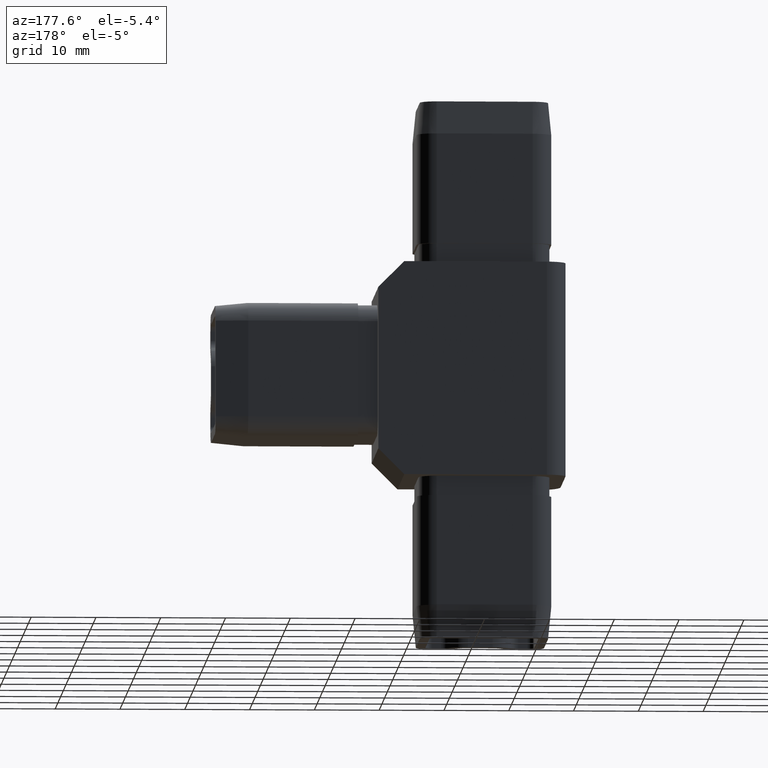
[diagram: clean part render]
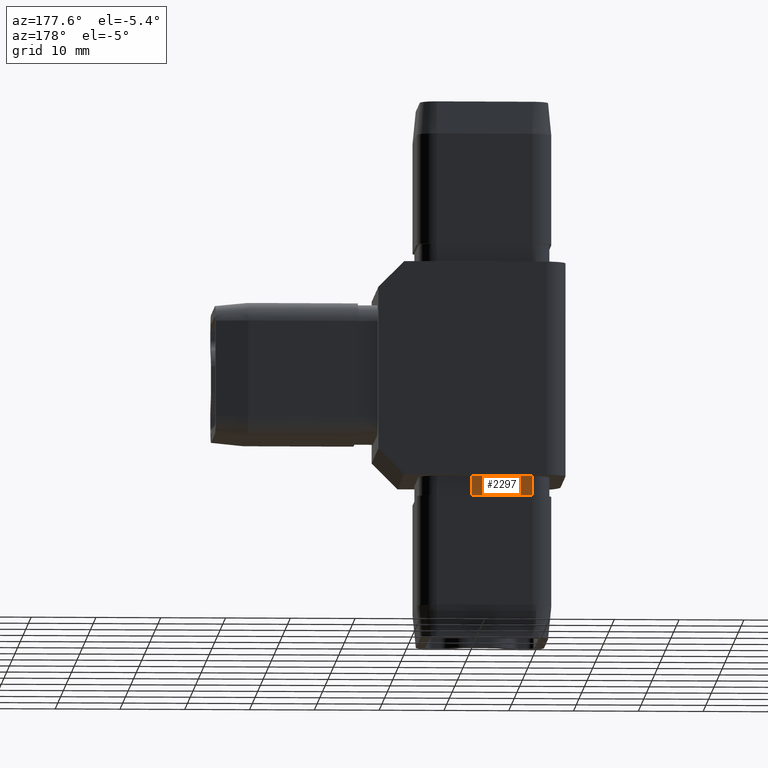
[diagram: same view with one face highlighted and labeled with its STEP entity id]
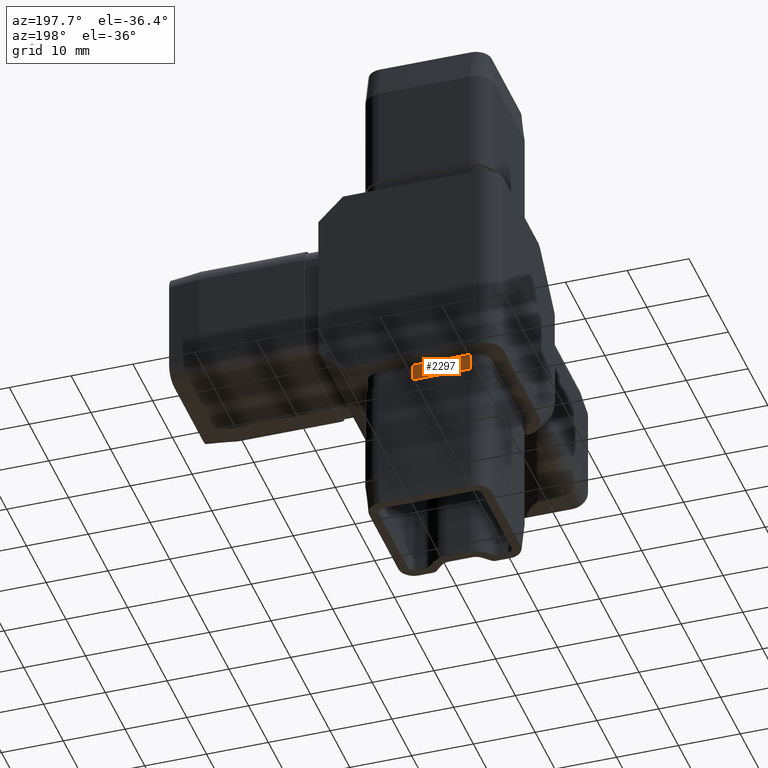
[diagram: same view with one face highlighted and labeled with its STEP entity id]
A machine part, auxiliary view. The second image highlights one B-rep face of the part: STEP entity #2297.
A second angle (auxiliary view) of the same face is appended — the face is thin or edge-on in the first view.
In plain terms, the highlighted planar face has unit normal (-0, 1, 0).
Its self-contained STEP definition (entity closure, byte-faithful):
#83 = VERTEX_POINT ( 'NONE', #4534 ) ;
#340 = CARTESIAN_POINT ( 'NONE',  ( -9.400000000000002100, 12.09999999999999800, -19.50000000000000000 ) ) ;
#374 = ORIENTED_EDGE ( 'NONE', *, *, #2377, .T. ) ;
#1303 = CARTESIAN_POINT ( 'NONE',  ( -9.400000000000002100, 12.09999999999999800, -16.50000000000000000 ) ) ;
#1330 = DIRECTION ( 'NONE',  ( 1.000000000000000000, 0.0000000000000000000, 0.0000000000000000000 ) ) ;
#1647 = VERTEX_POINT ( 'NONE', #17733 ) ;
#1673 = DIRECTION ( 'NONE',  ( 1.000000000000000000, 0.0000000000000000000, 0.0000000000000000000 ) ) ;
#2297 = ADVANCED_FACE ( 'NONE', ( #3000 ), #19384, .T. ) ;
#2377 = EDGE_CURVE ( 'NONE', #4821, #83, #7140, .T. ) ;
#3000 = FACE_OUTER_BOUND ( 'NONE', #6430, .T. ) ;
#3046 = EDGE_CURVE ( 'NONE', #1647, #83, #16048, .T. ) ;
#3087 = ORIENTED_EDGE ( 'NONE', *, *, #3046, .F. ) ;
#4176 = LINE ( 'NONE', #18490, #13399 ) ;
#4437 = CARTESIAN_POINT ( 'NONE',  ( 0.0000000000000000000, 12.10000000000000100, -19.50000000000000000 ) ) ;
#4534 = CARTESIAN_POINT ( 'NONE',  ( 0.0000000000000000000, 12.10000000000000100, -16.50000000000000000 ) ) ;
#4821 = VERTEX_POINT ( 'NONE', #1303 ) ;
#6430 = EDGE_LOOP ( 'NONE', ( #15928, #374, #3087, #16376 ) ) ;
#6943 = EDGE_CURVE ( 'NONE', #7769, #1647, #4176, .T. ) ;
#7140 = LINE ( 'NONE', #12607, #11730 ) ;
#7503 = CARTESIAN_POINT ( 'NONE',  ( 0.0000000000000000000, 12.10000000000000100, -16.50000000000000000 ) ) ;
#7769 = VERTEX_POINT ( 'NONE', #340 ) ;
#8461 = DIRECTION ( 'NONE',  ( -0.0000000000000000000, 1.000000000000000000, 0.0000000000000000000 ) ) ;
#8529 = CARTESIAN_POINT ( 'NONE',  ( -9.400000000000002100, 12.09999999999999800, -19.50000000000000000 ) ) ;
#9007 = CARTESIAN_POINT ( 'NONE',  ( 0.0000000000000000000, 12.10000000000000100, -17.50000000000000000 ) ) ;
#9350 = AXIS2_PLACEMENT_3D ( 'NONE', #8529, #8461, #13160 ) ;
#11730 = VECTOR ( 'NONE', #1673, 1000.000000000000000 ) ;
#11905 = VECTOR ( 'NONE', #14280, 1000.000000000000000 ) ;
#12607 = CARTESIAN_POINT ( 'NONE',  ( -9.400000000000002100, 12.09999999999999800, -16.50000000000000000 ) ) ;
#13160 = DIRECTION ( 'NONE',  ( 0.0000000000000000000, -0.0000000000000000000, 1.000000000000000000 ) ) ;
#13399 = VECTOR ( 'NONE', #1330, 1000.000000000000000 ) ;
#14280 = DIRECTION ( 'NONE',  ( 0.0000000000000000000, -0.0000000000000000000, 1.000000000000000000 ) ) ;
#15774 = CARTESIAN_POINT ( 'NONE',  ( -9.400000000000002100, 12.09999999999999800, -19.50000000000000000 ) ) ;
#15928 = ORIENTED_EDGE ( 'NONE', *, *, #18138, .T. ) ;
#16048 = B_SPLINE_CURVE_WITH_KNOTS ( 'NONE', 3,
 ( #4437, #18311, #9007, #7503 ),
 .UNSPECIFIED., .F., .F.,
 ( 4, 4 ),
 ( 0.0000000000000000000, 1.000000000000000000 ),
 .UNSPECIFIED. ) ;
#16376 = ORIENTED_EDGE ( 'NONE', *, *, #6943, .F. ) ;
#17733 = CARTESIAN_POINT ( 'NONE',  ( 0.0000000000000000000, 12.10000000000000100, -19.50000000000000000 ) ) ;
#18138 = EDGE_CURVE ( 'NONE', #7769, #4821, #18924, .T. ) ;
#18311 = CARTESIAN_POINT ( 'NONE',  ( 0.0000000000000000000, 12.10000000000000100, -18.50000000000000000 ) ) ;
#18490 = CARTESIAN_POINT ( 'NONE',  ( -9.400000000000002100, 12.09999999999999800, -19.50000000000000000 ) ) ;
#18924 = LINE ( 'NONE', #15774, #11905 ) ;
#19384 = PLANE ( 'NONE',  #9350 ) ;